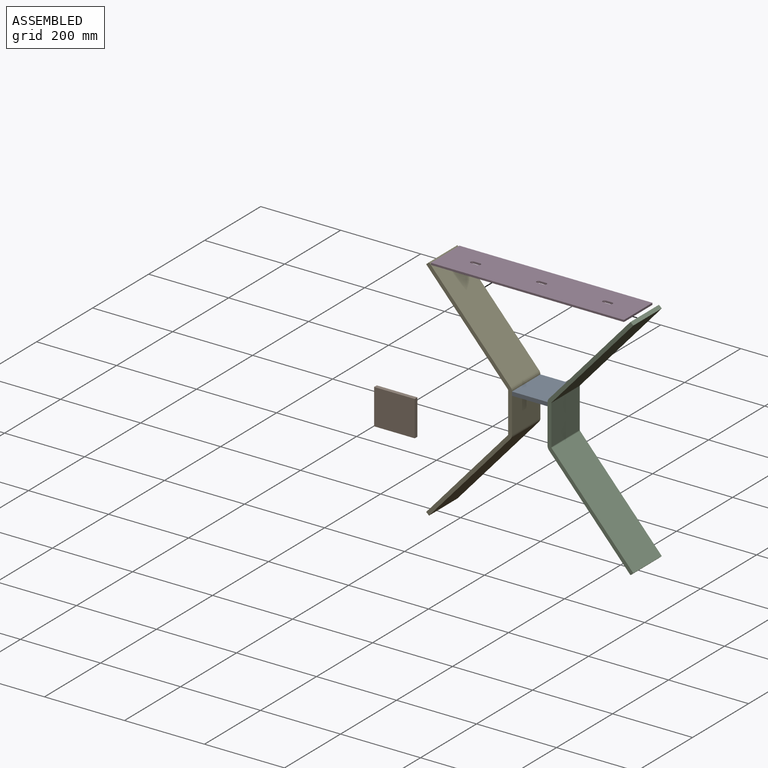
[diagram: assembled view]
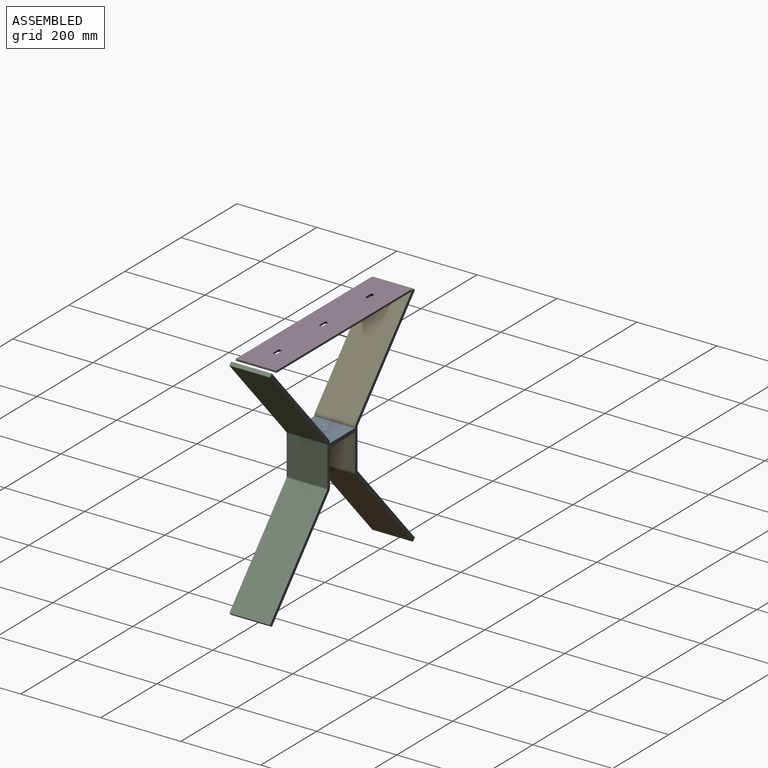
[diagram: assembled view, second angle]
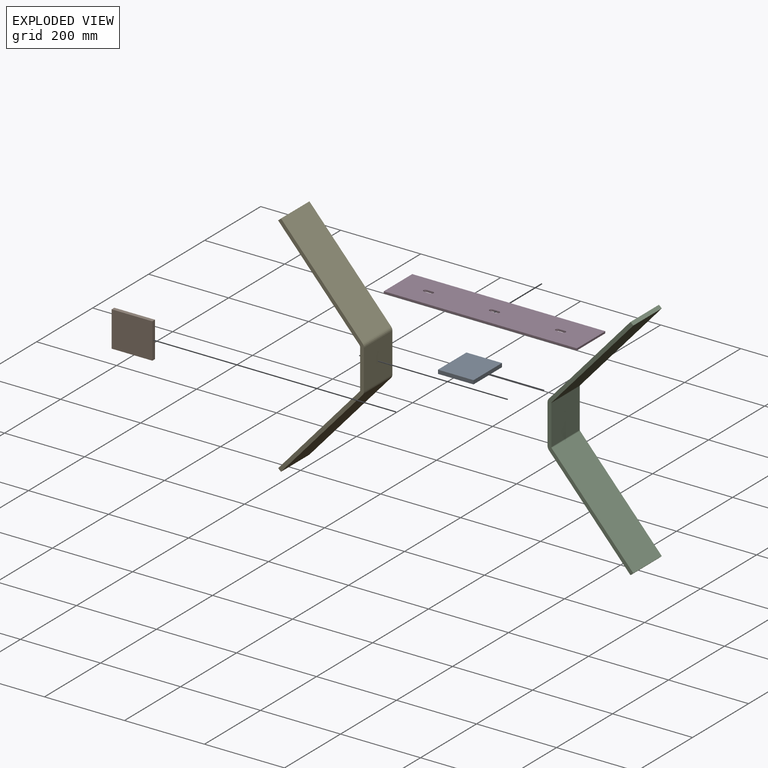
[diagram: exploded view]
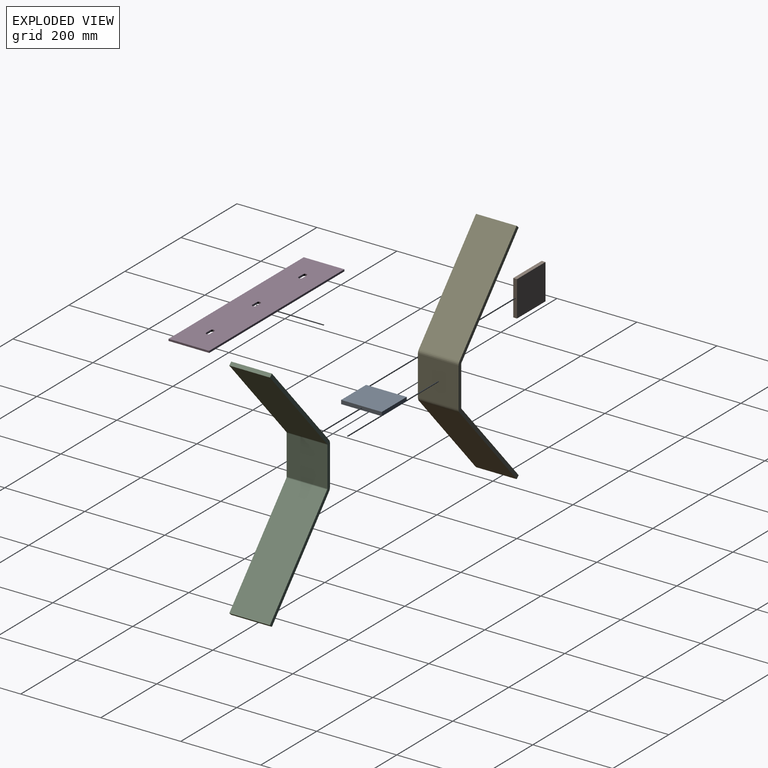
[diagram: exploded view, second angle]
ASSEMBLY  parts=5 mates=7
PART A: 6 faces, bbox 101.6x9.5x88.9 mm
  f0: plane 101.6x9.53mm, normal (0,0,-1), area 967.7mm2, adj f1,f3,f4,f5
  f1: plane 88.9x9.53mm, normal (1,0,0), area 846.8mm2, adj f0,f2,f4,f5
  f2: plane 101.6x9.53mm, normal (0,0,1), area 967.7mm2, adj f1,f3,f4,f5
  f3: plane 88.9x9.53mm, normal (-1,0,0), area 846.8mm2, adj f0,f2,f4,f5
  f4: plane 101.6x88.9mm, normal (0,-1,0), area 9032.2mm2, adj f0,f1,f2,f3
  f5: plane 101.6x88.9mm, normal (0,1,0), area 9032.2mm2, adj f0,f1,f2,f3
PART B: same geometry as A
PART C: 22 faces, bbox 214.5x101.6x572.4 mm
  f0: plane 99.17x9.53mm, normal (0,1,0), area 944.6mm2, adj f2,f3,f10,f19
  f1: plane 99.17x9.53mm, normal (0,-1,0), area 944.6mm2, adj f2,f3,f9,f18
  f2: plane 101.6x99.17mm, normal (1,0,0), area 10076mm2, adj f0,f1,f11,f20
  f3: plane 101.6x99.17mm, normal (-1,0,0), area 10076mm2, adj f0,f1,f12,f21
  f4: plane 234.48x211.23mm, normal (0,1,0), area 2915.9mm2, adj f6,f7,f8,f10
  f5: plane 234.48x211.23mm, normal (0,-1,0), area 2915.9mm2, adj f6,f7,f8,f9
  f6: plane 101.6x7.1mm, normal (-0.67,0,-0.75), area 967.7mm2, adj f4,f5,f7,f8
  f7: plane 228.13x204.13mm, normal (0.75,0,-0.67), area 31102.5mm2, adj f4,f5,f6,f11
  f8: plane 228.13x204.13mm, normal (-0.75,0,0.67), area 31102.5mm2, adj f4,f5,f6,f12
  f9: plane 10.33x8.47mm, normal (0,-1,0), area 55.2mm2, adj f1,f5,f11,f12
  f10: plane 10.33x8.47mm, normal (0,1,0), area 55.2mm2, adj f0,f4,f11,f12
  f11: cylinder r=12.7mm len=101.6mm, axis (0,-1,0), area 941.9mm2, adj f2,f7,f9,f10
  f12: cylinder r=3.17mm len=101.6mm, axis (0,-1,0), area 235.5mm2, adj f3,f8,f9,f10
  f13: plane 234.48x211.23mm, normal (0,1,0), area 2915.9mm2, adj f14,f16,f17,f19
  f14: plane 101.6x7.1mm, normal (-0.67,0,0.75), area 967.7mm2, adj f13,f15,f16,f17
  f15: plane 234.48x211.23mm, normal (0,-1,0), area 2915.9mm2, adj f14,f16,f17,f18
  f16: plane 228.13x204.13mm, normal (0.75,0,0.67), area 31102.5mm2, adj f13,f14,f15,f20
  f17: plane 228.13x204.13mm, normal (-0.75,0,-0.67), area 31102.5mm2, adj f13,f14,f15,f21
  f18: plane 10.33x8.47mm, normal (0,-1,0), area 55.2mm2, adj f1,f15,f20,f21
  f19: plane 10.33x8.47mm, normal (0,1,0), area 55.2mm2, adj f0,f13,f20,f21
  f20: cylinder r=12.7mm len=101.6mm, axis (0,-1,0), area 941.9mm2, adj f2,f16,f18,f19
  f21: cylinder r=3.17mm len=101.6mm, axis (0,-1,0), area 235.5mm2, adj f3,f17,f18,f19
PART D: 24 faces, bbox 482.6x4.8x101.6 mm
  f0: plane 482.6x4.78mm, normal (0,0,-1), area 2304.5mm2, adj f1,f9,f10,f11
  f1: plane 101.6x4.78mm, normal (1,0,0), area 485.2mm2, adj f0,f2,f10,f11
  f2: plane 482.6x4.78mm, normal (0,0,1), area 2304.5mm2, adj f1,f9,f10,f11
  f3: plane 15.83x4.78mm, normal (0,0,1), area 75.6mm2, adj f10,f11,f21,f22
  f4: plane 15.83x4.78mm, normal (0,0,-1), area 75.6mm2, adj f10,f11,f20,f23
  f5: plane 15.83x4.78mm, normal (0,0,1), area 75.6mm2, adj f10,f11,f17,f18
  f6: plane 15.83x4.78mm, normal (0,0,-1), area 75.6mm2, adj f10,f11,f16,f19
  f7: plane 15.83x4.78mm, normal (0,0,1), area 75.6mm2, adj f10,f11,f13,f14
  f8: plane 15.83x4.78mm, normal (0,0,-1), area 75.6mm2, adj f10,f11,f12,f15
  f9: plane 101.6x4.78mm, normal (-1,0,0), area 485.2mm2, adj f0,f2,f10,f11
  f10: plane 482.6x101.6mm, normal (0,-1,0), area 48365.3mm2, adj f0,f1,f2,f3,f4,f5,f6,f7
  f11: plane 482.6x101.6mm, normal (0,1,0), area 48365.3mm2, adj f0,f1,f2,f3,f4,f5,f6,f7
  f12: cylinder r=4.78mm len=4.78mm, axis (0,-1,0), area 35.8mm2, adj f8,f10,f11,f13
  f13: cylinder r=4.78mm len=4.78mm, axis (0,1,0), area 35.8mm2, adj f7,f10,f11,f12
  f14: cylinder r=4.78mm len=4.78mm, axis (0,-1,0), area 35.8mm2, adj f7,f10,f11,f15
  f15: cylinder r=4.78mm len=4.78mm, axis (0,1,0), area 35.8mm2, adj f8,f10,f11,f14
  f16: cylinder r=4.78mm len=4.78mm, axis (0,-1,0), area 35.8mm2, adj f6,f10,f11,f17
  f17: cylinder r=4.78mm len=4.78mm, axis (0,1,0), area 35.8mm2, adj f5,f10,f11,f16
  f18: cylinder r=4.78mm len=4.78mm, axis (0,-1,0), area 35.8mm2, adj f5,f10,f11,f19
  f19: cylinder r=4.78mm len=4.78mm, axis (0,1,0), area 35.8mm2, adj f6,f10,f11,f18
  f20: cylinder r=4.78mm len=4.78mm, axis (0,-1,0), area 35.8mm2, adj f4,f10,f11,f21
  f21: cylinder r=4.78mm len=4.78mm, axis (0,1,0), area 35.8mm2, adj f3,f10,f11,f20
  f22: cylinder r=4.78mm len=4.78mm, axis (0,-1,0), area 35.8mm2, adj f3,f10,f11,f23
  f23: cylinder r=4.78mm len=4.78mm, axis (0,1,0), area 35.8mm2, adj f4,f10,f11,f22
PART E: same geometry as C
PLACE A rot(axis=(-0.58,0.58,-0.58),120deg) t=(-235.59,-51.25,268.35)mm
PLACE B t=(-416.63,-130.38,157.64)mm
PLACE C rot(axis=(0,-1,0),180deg) t=(-137.17,50.35,508.12)mm
PLACE D rot(axis=(1,0,0),90deg) t=(44.34,50.35,514.59)mm
PLACE E t=(-245.12,50.35,-51.49)mm
MATE planar A.f2 <-> C.f2  axis (1,0,0) through (-146.69,-0.45,268.35)mm
MATE planar C.f2 <-> A.f2  axis (-1,0,0) through (-146.69,-0.45,277.88)mm
MATE planar C.f0 <-> A.f3  axis (0,1,0) through (-146.69,50.35,277.88)mm
MATE planar E.f15 <-> D.f2  axis (0,-1,0) through (-442.96,-51.25,514.53)mm
MATE planar A.f2 <-> C.f2  axis (1,0,0) through (-146.69,-0.45,273.12)mm
MATE planar E.f2 <-> A.f0  axis (1,0,0) through (-235.59,-0.45,277.93)mm
MATE planar A.f3 <-> E.f19  axis (0,1,0) through (-235.59,50.35,268.35)mm
